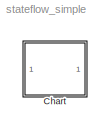
MODEL stateflow_simple
KIND model
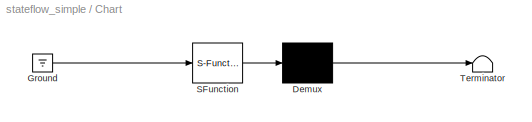
BLOCK [SubSystem] Chart
  ErrorFcn = Stateflow.Translate.translate
  PermitHierarchicalResolution = ExplicitOnly
  Ports = []
  RequestExecContextInheritance = off
  SFBlockType = Chart
  SID = 1
  TreatAsAtomicUnit = on
  Variant = off
BLOCK [Demux] Chart/ Demux 
  Outputs = 1
  Ports = [1, 1]
  SID = 1::74
BLOCK [Ground] Chart/ Ground 
  SID = 1::76
BLOCK [S-Function] Chart/ SFunction 
  EnableBusSupport = off
  FunctionName = sf_sfun
  PortCounts = [1 1]
  Ports = [1, 1]
  SFunctionDeploymentMode = off
  SID = 1::73
  Tag = Stateflow S-Function stateflow_simple 3
BLOCK [Terminator] Chart/ Terminator 
  SID = 1::75
LINE Chart/ Demux :1 -> Chart/ Terminator :1
LINE Chart/ Ground :1 -> Chart/ SFunction :1
LINE Chart/ SFunction :1 -> Chart/ Demux :1
CHART Chart states=3 transitions=4
  STATE_LABEL 'ABC'
  STATE_LABEL 'GHI'
  STATE_LABEL 'DEF'
